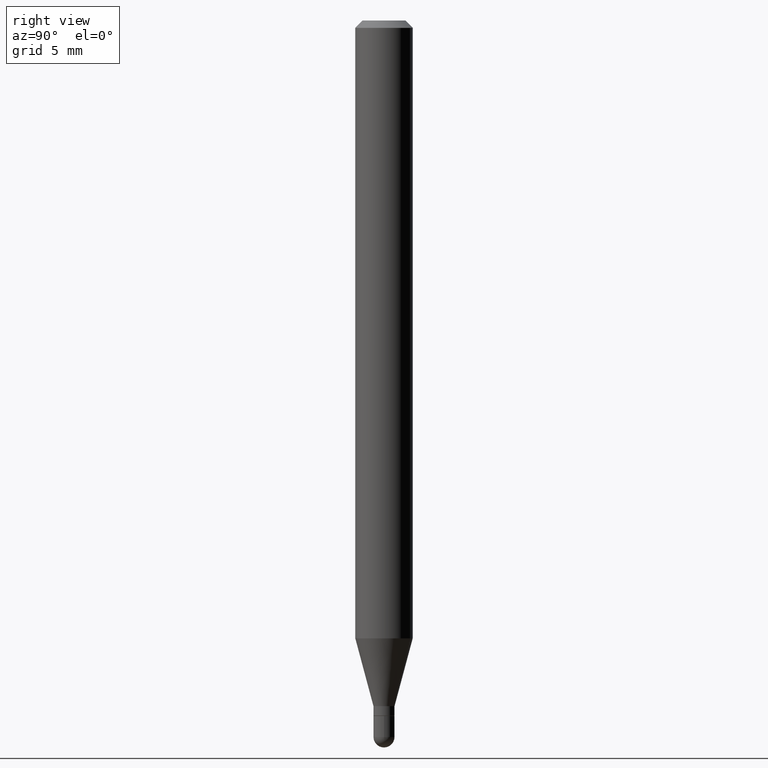
[diagram: clean part render]
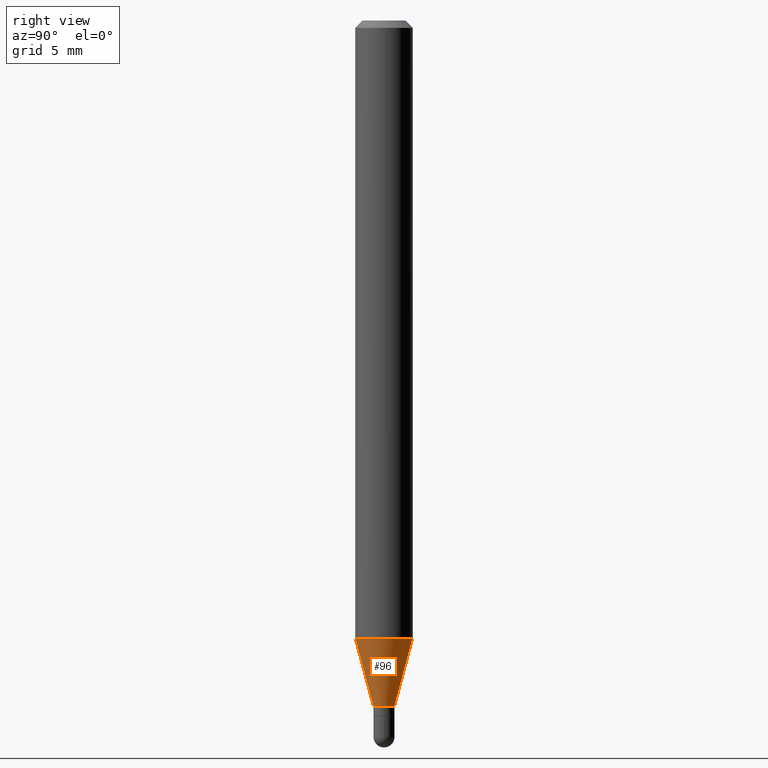
[diagram: same view with one face highlighted and labeled with its STEP entity id]
A machine part, right view. The second image highlights one B-rep face of the part: STEP entity #96.
In plain terms, the highlighted conical surface has half-angle 15 deg.
Its self-contained STEP definition (entity closure, byte-faithful):
#44 = VERTEX_POINT ( 'NONE', #306 ) ;
#47 = DIRECTION ( 'NONE',  ( -6.982962677686265133E-15, -1.000000000000000000, 0.000000000000000000 ) ) ;
#55 = CONICAL_SURFACE ( 'NONE', #277, 0.02165000000000018646, 0.2617993877991501295 ) ;
#60 = DIRECTION ( 'NONE',  ( 1.839019923739599526E-15, 0.2588190451025248473, 0.9659258262890673130 ) ) ;
#67 = LINE ( 'NONE', #484, #139 ) ;
#72 = EDGE_CURVE ( 'NONE', #44, #249, #130, .T. ) ;
#82 = AXIS2_PLACEMENT_3D ( 'NONE', #471, #400, #47 ) ;
#90 = DIRECTION ( 'NONE',  ( -6.982962677686265922E-15, -1.000000000000000000, 4.626330217890369336E-15 ) ) ;
#96 = ADVANCED_FACE ( 'NONE', ( #390 ), #55, .T. ) ;
#108 = VERTEX_POINT ( 'NONE', #283 ) ;
#121 = CIRCLE ( 'NONE', #182, 0.05904999999999999832 ) ;
#130 = CIRCLE ( 'NONE', #82, 0.02165000000000018646 ) ;
#139 = VECTOR ( 'NONE', #60, 39.37007874015747433 ) ;
#143 = ORIENTED_EDGE ( 'NONE', *, *, #462, .F. ) ;
#177 = DIRECTION ( 'NONE',  ( -1.807323732225328562E-15, -0.2588190451025179639, 0.9659258262890689783 ) ) ;
#182 = AXIS2_PLACEMENT_3D ( 'NONE', #285, #199, #90 ) ;
#192 = ORIENTED_EDGE ( 'NONE', *, *, #334, .F. ) ;
#195 = CARTESIAN_POINT ( 'NONE',  ( 2.867039938792339794E-16, 0.02164999999999525984, -1.411099999999999799 ) ) ;
#199 = DIRECTION ( 'NONE',  ( -2.444940213007535554E-29, 3.492238314359125487E-15, 1.000000000000000000 ) ) ;
#200 = DIRECTION ( 'NONE',  ( -2.444940213007535554E-29, 3.492238314359125487E-15, 1.000000000000000000 ) ) ;
#201 = CARTESIAN_POINT ( 'NONE',  ( -4.123439461173429713E-16, -0.05905000000000445309, -1.271521299796924742 ) ) ;
#249 = VERTEX_POINT ( 'NONE', #195 ) ;
#252 = ORIENTED_EDGE ( 'NONE', *, *, #72, .T. ) ;
#253 = EDGE_LOOP ( 'NONE', ( #252, #387, #192, #143 ) ) ;
#265 = VERTEX_POINT ( 'NONE', #201 ) ;
#277 = AXIS2_PLACEMENT_3D ( 'NONE', #353, #200, #365 ) ;
#283 = CARTESIAN_POINT ( 'NONE',  ( 4.195754854663700120E-16, 0.05904999999999554355, -1.271521299796925186 ) ) ;
#285 = CARTESIAN_POINT ( 'NONE',  ( 3.108793557569111606E-29, -4.440455400674538017E-15, -1.271521299796924964 ) ) ;
#306 = CARTESIAN_POINT ( 'NONE',  ( -1.511811419718744264E-16, -0.02165000000000510960, -1.411099999999999799 ) ) ;
#310 = VECTOR ( 'NONE', #177, 39.37007874015749564 ) ;
#334 = EDGE_CURVE ( 'NONE', #265, #108, #121, .T. ) ;
#353 = CARTESIAN_POINT ( 'NONE',  ( 3.450055134574933114E-29, -4.927897485392160826E-15, -1.411099999999999799 ) ) ;
#365 = DIRECTION ( 'NONE',  ( -6.982962677686265133E-15, -1.000000000000000000, 0.000000000000000000 ) ) ;
#387 = ORIENTED_EDGE ( 'NONE', *, *, #487, .T. ) ;
#390 = FACE_OUTER_BOUND ( 'NONE', #253, .T. ) ;
#400 = DIRECTION ( 'NONE',  ( -2.444940213007535554E-29, 3.492238314359125487E-15, 1.000000000000000000 ) ) ;
#402 = LINE ( 'NONE', #488, #310 ) ;
#462 = EDGE_CURVE ( 'NONE', #44, #265, #402, .T. ) ;
#471 = CARTESIAN_POINT ( 'NONE',  ( 3.450055134574933114E-29, -4.927897485392160826E-15, -1.411099999999999799 ) ) ;
#484 = CARTESIAN_POINT ( 'NONE',  ( 1.538325022920974785E-16, 0.02164999999999525984, -1.411099999999999799 ) ) ;
#487 = EDGE_CURVE ( 'NONE', #249, #108, #67, .T. ) ;
#488 = CARTESIAN_POINT ( 'NONE',  ( -1.511811419718744264E-16, -0.02165000000000510960, -1.411099999999999799 ) ) ;